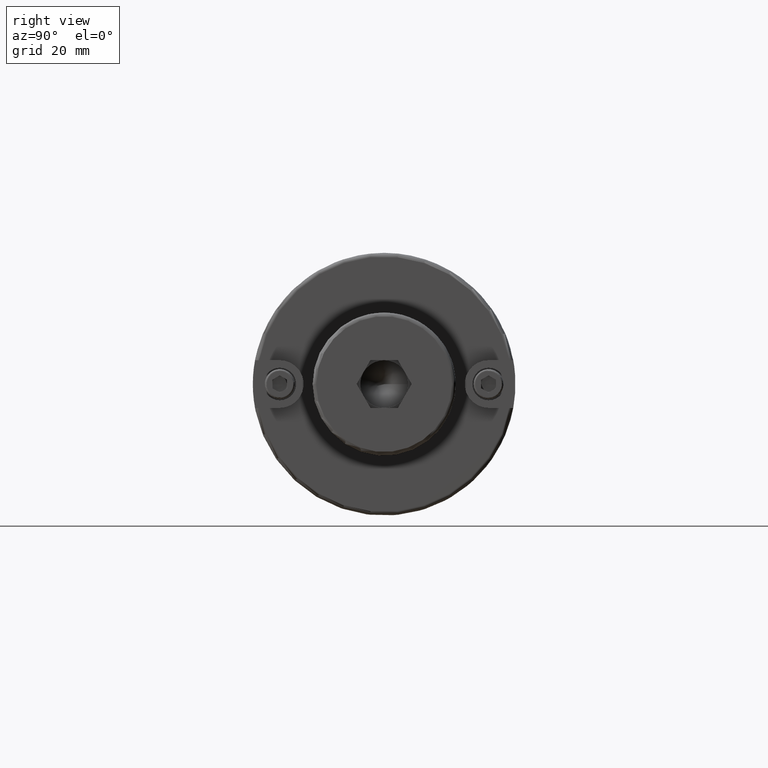
[diagram: clean part render]
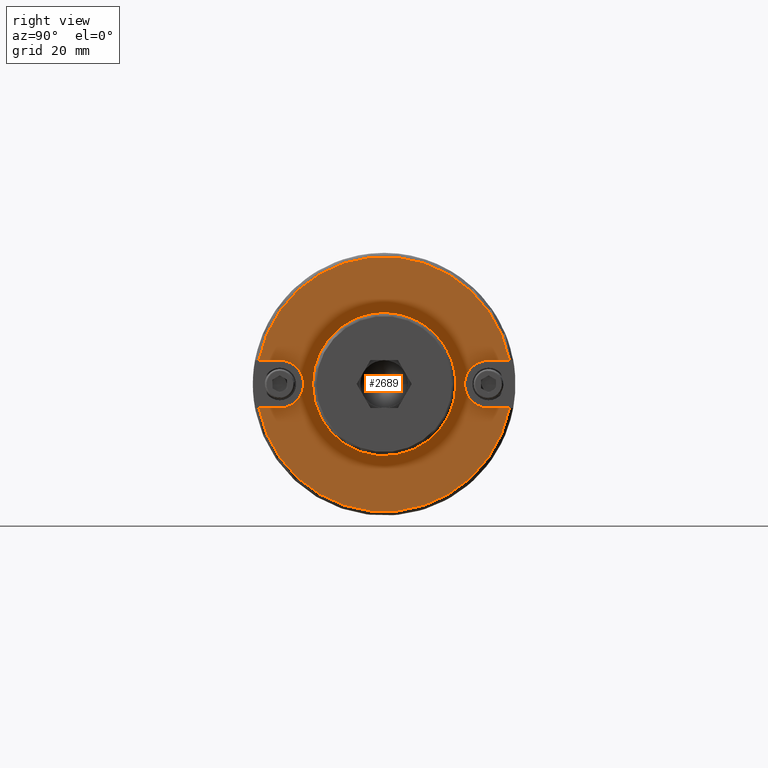
[diagram: same view with one face highlighted and labeled with its STEP entity id]
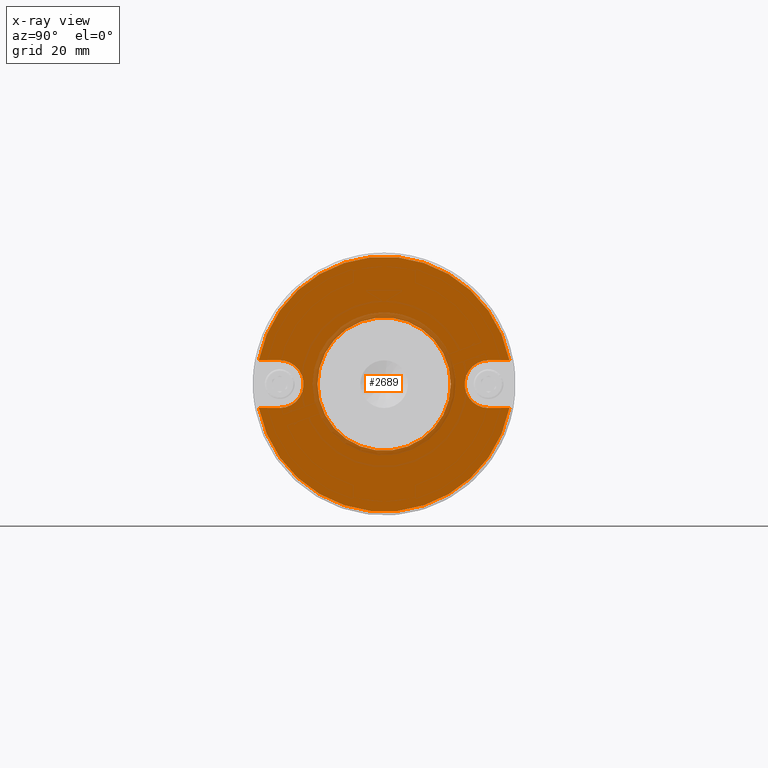
[diagram: x-ray of the same camera — body ghosted, the highlighted face saturated]
A machine part, right view. The second image highlights one B-rep face of the part: STEP entity #2689.
The next image is the same camera in x-ray: the body ghosted, the highlighted face saturated — about 7% of this face is hidden behind the body in this view.
In plain terms, the highlighted planar face has unit normal (1, 0, 0).
Its self-contained STEP definition (entity closure, byte-faithful):
#97=FACE_BOUND('',#413,.T.);
#149=PLANE('',#2970);
#250=FACE_OUTER_BOUND('',#412,.T.);
#412=EDGE_LOOP('',(#1872,#1873,#1874,#1875,#1876,#1877,#1878,#1879));
#413=EDGE_LOOP('',(#1880));
#599=CIRCLE('',#2964,6.35);
#603=CIRCLE('',#2971,33.925);
#604=CIRCLE('',#2972,6.35);
#605=CIRCLE('',#2973,33.925);
#606=CIRCLE('',#2974,17.725);
#752=LINE('',#4272,#925);
#761=LINE('',#4309,#934);
#762=LINE('',#4318,#935);
#763=LINE('',#4322,#936);
#925=VECTOR('',#3335,10.);
#934=VECTOR('',#3360,10.);
#935=VECTOR('',#3371,10.);
#936=VECTOR('',#3374,10.);
#1152=VERTEX_POINT('',#4259);
#1154=VERTEX_POINT('',#4271);
#1160=VERTEX_POINT('',#4288);
#1163=VERTEX_POINT('',#4295);
#1166=VERTEX_POINT('',#4315);
#1167=VERTEX_POINT('',#4317);
#1168=VERTEX_POINT('',#4319);
#1169=VERTEX_POINT('',#4321);
#1170=VERTEX_POINT('',#4324);
#1430=EDGE_CURVE('',#1154,#1152,#752,.T.);
#1438=EDGE_CURVE('',#1160,#1154,#599,.T.);
#1444=EDGE_CURVE('',#1163,#1160,#761,.T.);
#1447=EDGE_CURVE('',#1166,#1152,#603,.T.);
#1448=EDGE_CURVE('',#1166,#1167,#762,.T.);
#1449=EDGE_CURVE('',#1167,#1168,#604,.T.);
#1450=EDGE_CURVE('',#1168,#1169,#763,.T.);
#1451=EDGE_CURVE('',#1163,#1169,#605,.T.);
#1452=EDGE_CURVE('',#1170,#1170,#606,.T.);
#1872=ORIENTED_EDGE('',*,*,#1444,.T.);
#1873=ORIENTED_EDGE('',*,*,#1438,.T.);
#1874=ORIENTED_EDGE('',*,*,#1430,.T.);
#1875=ORIENTED_EDGE('',*,*,#1447,.F.);
#1876=ORIENTED_EDGE('',*,*,#1448,.T.);
#1877=ORIENTED_EDGE('',*,*,#1449,.T.);
#1878=ORIENTED_EDGE('',*,*,#1450,.T.);
#1879=ORIENTED_EDGE('',*,*,#1451,.F.);
#1880=ORIENTED_EDGE('',*,*,#1452,.F.);
#2689=ADVANCED_FACE('',(#250,#97),#149,.T.);
#2964=AXIS2_PLACEMENT_3D('',#4289,#3351,#3352);
#2970=AXIS2_PLACEMENT_3D('',#4314,#3367,#3368);
#2971=AXIS2_PLACEMENT_3D('',#4316,#3369,#3370);
#2972=AXIS2_PLACEMENT_3D('',#4320,#3372,#3373);
#2973=AXIS2_PLACEMENT_3D('',#4323,#3375,#3376);
#2974=AXIS2_PLACEMENT_3D('',#4325,#3377,#3378);
#3335=DIRECTION('',(0.,-1.,1.22464679914735E-16));
#3351=DIRECTION('center_axis',(-1.,0.,0.));
#3352=DIRECTION('ref_axis',(0.,-1.22464679914735E-16,-1.));
#3360=DIRECTION('',(0.,1.,6.02880813404345E-17));
#3367=DIRECTION('center_axis',(1.,0.,0.));
#3368=DIRECTION('ref_axis',(0.,0.,-1.));
#3369=DIRECTION('center_axis',(-1.,0.,0.));
#3370=DIRECTION('ref_axis',(0.,-1.,1.83697019872103E-16));
#3371=DIRECTION('',(0.,-1.,-1.8275276125517E-16));
#3372=DIRECTION('center_axis',(-1.,0.,0.));
#3373=DIRECTION('ref_axis',(0.,0.,1.));
#3374=DIRECTION('',(0.,1.,0.));
#3375=DIRECTION('center_axis',(-1.,0.,0.));
#3376=DIRECTION('ref_axis',(0.,-1.,1.83697019872103E-16));
#3377=DIRECTION('center_axis',(1.,0.,0.));
#3378=DIRECTION('ref_axis',(0.,0.,-1.));
#4259=CARTESIAN_POINT('',(59.944,-33.3254126005966,-6.35));
#4271=CARTESIAN_POINT('',(59.944,-27.775,-6.35));
#4272=CARTESIAN_POINT('',(59.944,-5.02500000000001,-6.35));
#4288=CARTESIAN_POINT('',(59.944,-27.775,6.35));
#4289=CARTESIAN_POINT('Origin',(59.944,-27.775,3.40145648463177E-15));
#4295=CARTESIAN_POINT('',(59.944,-33.3254126005966,6.35));
#4309=CARTESIAN_POINT('',(59.944,-11.1,6.35));
#4314=CARTESIAN_POINT('Origin',(59.944,17.725,0.));
#4315=CARTESIAN_POINT('',(59.944,33.3254126005966,-6.35));
#4316=CARTESIAN_POINT('Origin',(59.944,0.,0.));
#4317=CARTESIAN_POINT('',(59.944,27.775,-6.35));
#4318=CARTESIAN_POINT('',(59.944,28.825,-6.35));
#4319=CARTESIAN_POINT('',(59.944,27.775,6.35));
#4320=CARTESIAN_POINT('Origin',(59.944,27.775,0.));
#4321=CARTESIAN_POINT('',(59.944,33.3254126005966,6.35));
#4322=CARTESIAN_POINT('',(59.944,22.75,6.35));
#4323=CARTESIAN_POINT('Origin',(59.944,0.,0.));
#4324=CARTESIAN_POINT('',(59.944,-17.725,-2.17068645148868E-15));
#4325=CARTESIAN_POINT('Origin',(59.944,0.,0.));